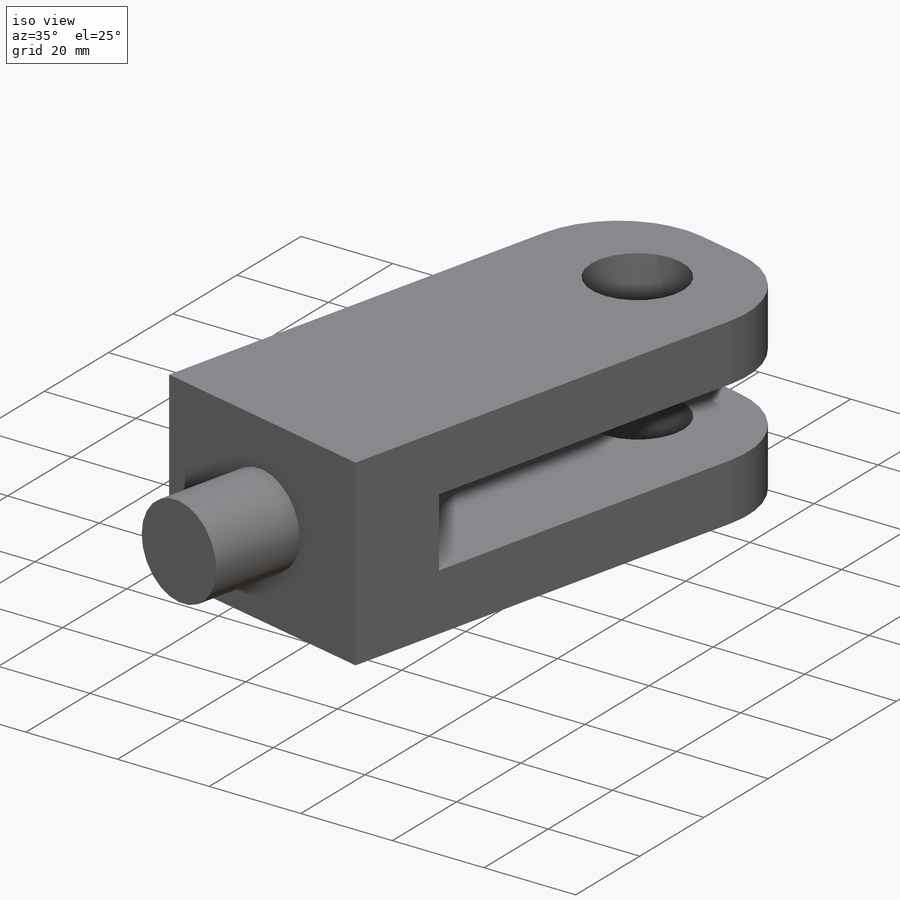
[diagram: iso view]
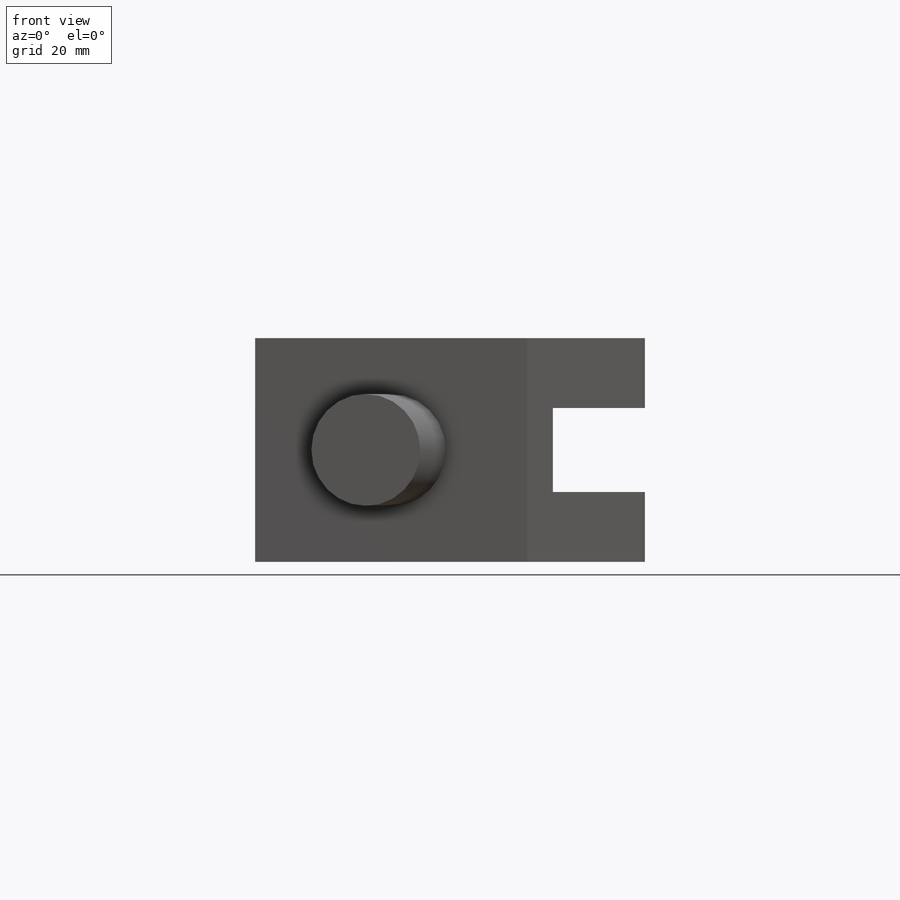
[diagram: front view]
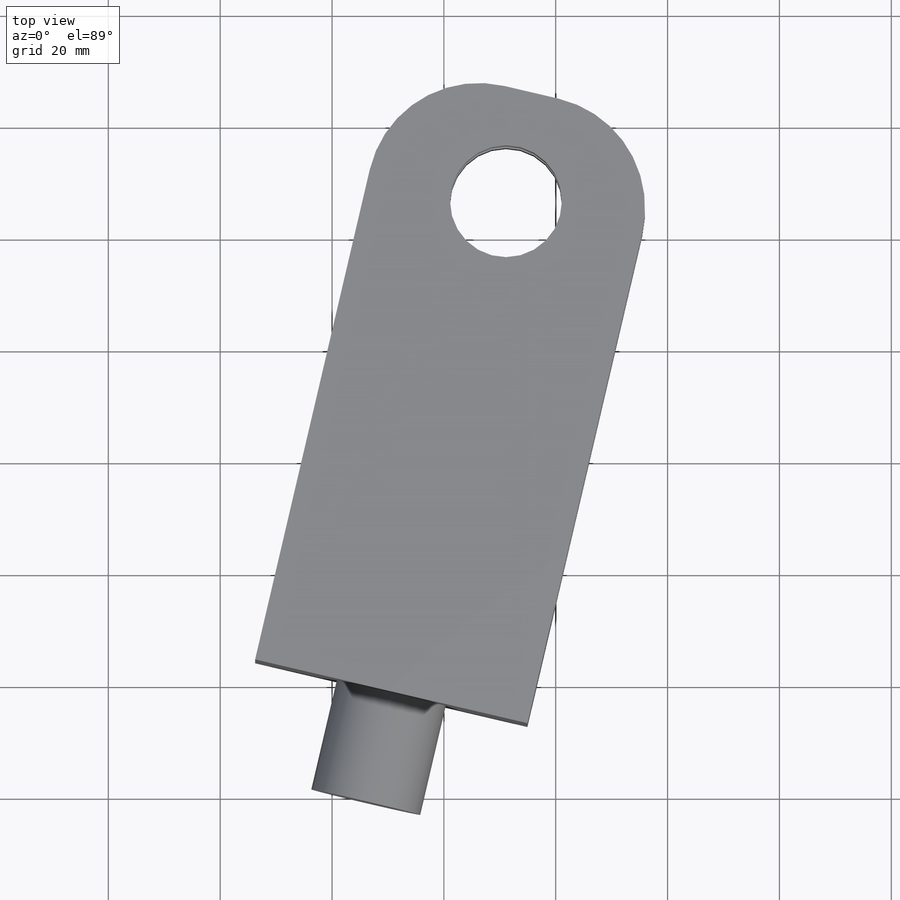
[diagram: top view]
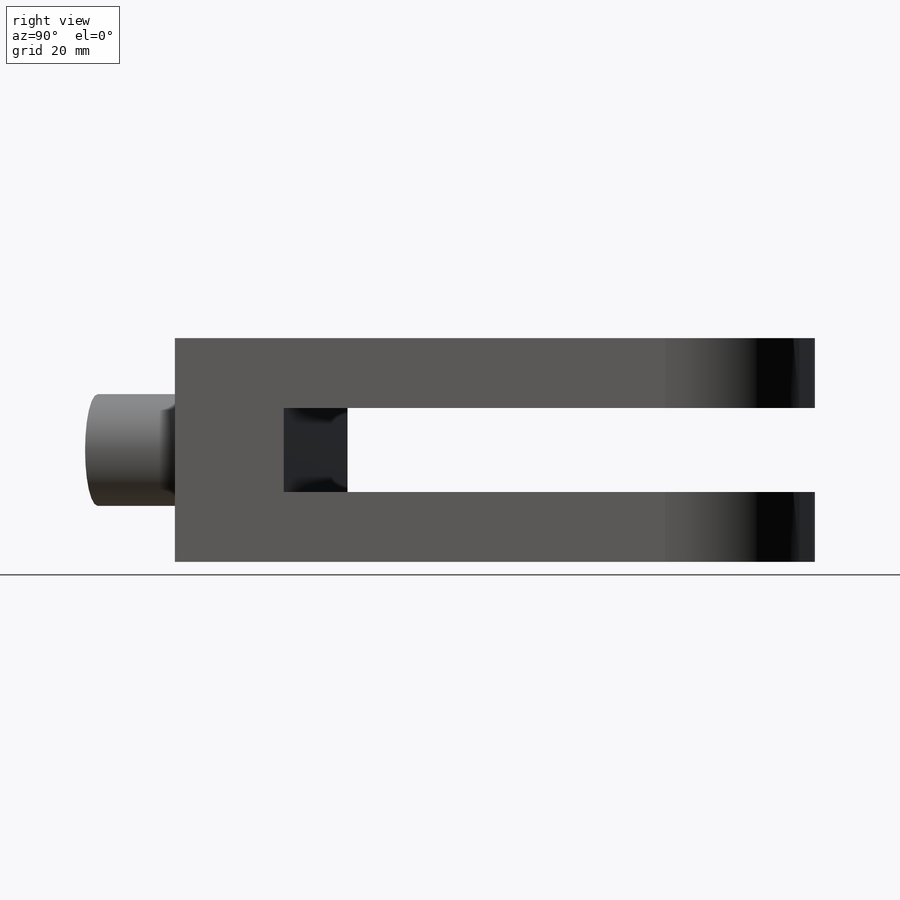
[diagram: right view]
SOLIDWORKS PART (.sldprt)
format: sldprt  version: not decoded by parser v0  size: 151,552 bytes
history: native  units: mm
features: sketch x4, extrude x2, cut_extrude x2, material x1, fillet x1 (+13 scaffold rows collapsed)
feature tree (23):
  scaffold x13  (default folders/planes/origin — collapsed)
  material  "Material <not specified>"
  sketch  "Sketch9"  dims[D1=50.0mm D2=110.0mm]
  extrude  "Boss-Extrude3"  Depth=40mm
  sketch  "Sketch14"  dims[D1=15.0mm D2=50.0mm]
  cut_extrude  "Cut-Extrude4"  Depth=90mm
  fillet  "Fillet2"  Radius=20mm
  sketch  "Sketch15"  dims[D1=20.0mm]
  cut_extrude  "Cut-Extrude5"  [1 undecoded]
  sketch  "Sketch22"  dims[D1=20.0mm]
  extrude  "Boss-Extrude4"  Depth=20mm
decode coverage: 8 of 9 modeling features carry decoded parameters
note: 1 parameter value undecoded
note: suppression state not decoded; provenance and decode notes live in map.json
